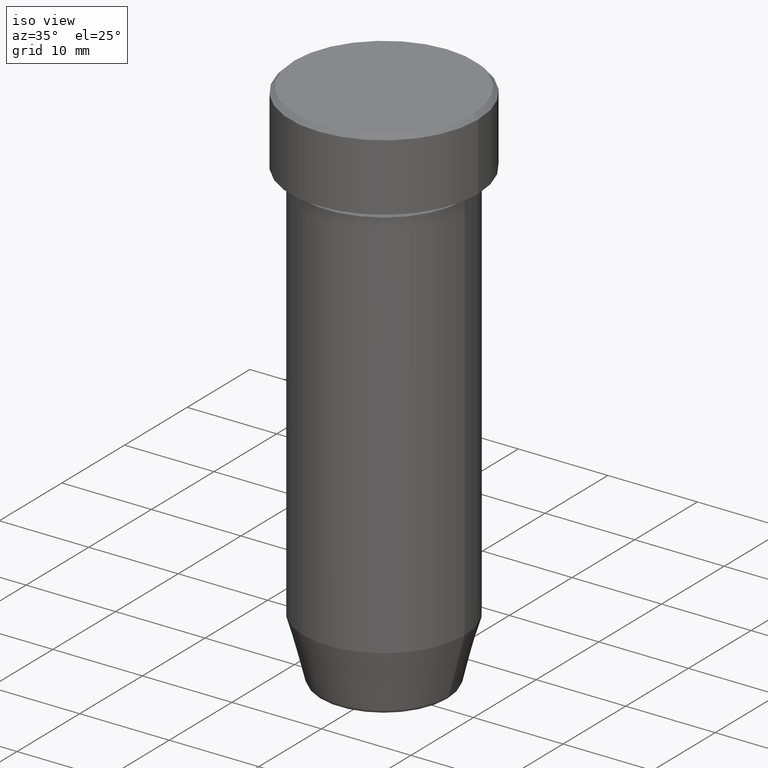
[diagram: clean part render]
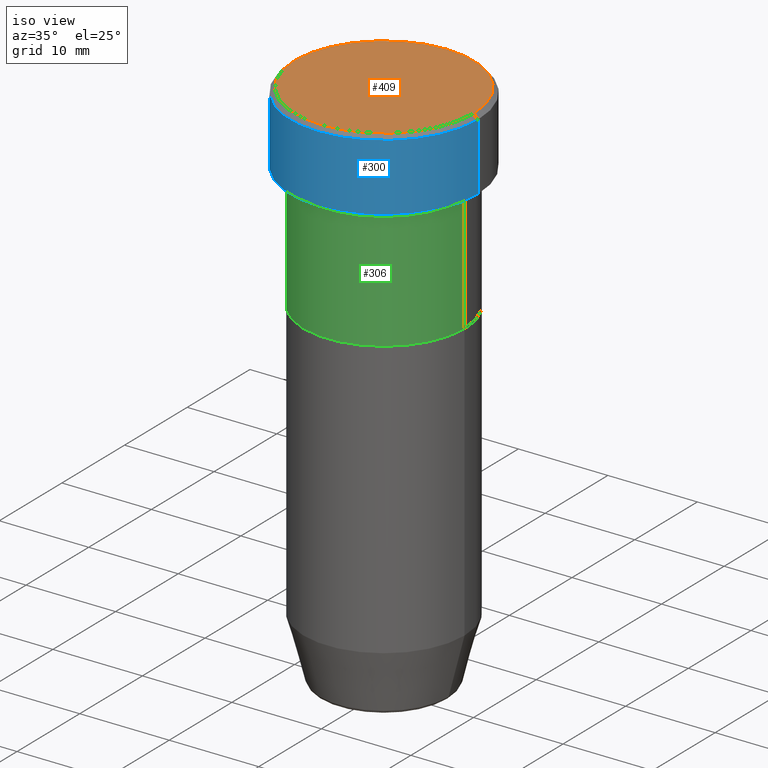
[diagram: same view with three faces highlighted in distinct colors, each labeled with its STEP entity id]
A machine part, iso view with three faces highlighted in distinct colors.
Their STEP definitions:

[orange] entity #409 — the highlighted planar face has unit normal (0, -0, 1).
#39 = DIRECTION ( 'NONE',  ( 0.000000000000000000, -0.000000000000000000, 1.000000000000000000 ) ) ;
#73 = PLANE ( 'NONE',  #519 ) ;
#89 = FACE_OUTER_BOUND ( 'NONE', #521, .T. ) ;
#135 = DIRECTION ( 'NONE',  ( -0.000000000000000000, -0.000000000000000000, 1.000000000000000000 ) ) ;
#141 = DIRECTION ( 'NONE',  ( -0.000000000000000000, -0.000000000000000000, 1.000000000000000000 ) ) ;
#145 = CARTESIAN_POINT ( 'NONE',  ( 0.000000000000000000, 0.000000000000000000, 0.000000000000000000 ) ) ;
#149 = AXIS2_PLACEMENT_3D ( 'NONE', #145, #141, #229 ) ;
#154 = ORIENTED_EDGE ( 'NONE', *, *, #185, .T. ) ;
#185 = EDGE_CURVE ( 'NONE', #275, #220, #296, .T. ) ;
#220 = VERTEX_POINT ( 'NONE', #599 ) ;
#229 = DIRECTION ( 'NONE',  ( 1.000000000000000000, 0.000000000000000000, 0.000000000000000000 ) ) ;
#265 = CARTESIAN_POINT ( 'NONE',  ( 0.000000000000000000, 0.000000000000000000, 0.000000000000000000 ) ) ;
#275 = VERTEX_POINT ( 'NONE', #472 ) ;
#296 = CIRCLE ( 'NONE', #528, 10.00000000000000178 ) ;
#325 = DIRECTION ( 'NONE',  ( 1.000000000000000000, 0.000000000000000000, 0.000000000000000000 ) ) ;
#334 = CIRCLE ( 'NONE', #149, 10.00000000000000178 ) ;
#360 = CARTESIAN_POINT ( 'NONE',  ( 0.000000000000000000, 0.000000000000000000, 0.000000000000000000 ) ) ;
#380 = ORIENTED_EDGE ( 'NONE', *, *, #494, .T. ) ;
#409 = ADVANCED_FACE ( 'NONE', ( #89 ), #73, .T. ) ;
#452 = DIRECTION ( 'NONE',  ( 1.000000000000000000, 0.000000000000000000, 0.000000000000000000 ) ) ;
#472 = CARTESIAN_POINT ( 'NONE',  ( 10.00000000000000178, 1.255262969126037241E-15, 0.000000000000000000 ) ) ;
#494 = EDGE_CURVE ( 'NONE', #220, #275, #334, .T. ) ;
#519 = AXIS2_PLACEMENT_3D ( 'NONE', #265, #39, #452 ) ;
#521 = EDGE_LOOP ( 'NONE', ( #380, #154 ) ) ;
#528 = AXIS2_PLACEMENT_3D ( 'NONE', #360, #135, #325 ) ;
#599 = CARTESIAN_POINT ( 'NONE',  ( -10.00000000000000178, 0.000000000000000000, 0.000000000000000000 ) ) ;

[blue] entity #300 — the highlighted cylindrical surface (partial cylindrical patch) has radius 10.5 mm, axis along (-0, -0, 1).
#11 = CARTESIAN_POINT ( 'NONE',  ( -10.50000000000000000, 1.285879139104720831E-15, -0.5000000000000023315 ) ) ;
#15 = CARTESIAN_POINT ( 'NONE',  ( -10.50000000000000000, 1.285879139104720831E-15, -8.000000000000000000 ) ) ;
#41 = ORIENTED_EDGE ( 'NONE', *, *, #153, .T. ) ;
#50 = CARTESIAN_POINT ( 'NONE',  ( 0.000000000000000000, 0.000000000000000000, -0.5000000000000023315 ) ) ;
#52 = DIRECTION ( 'NONE',  ( 1.000000000000000000, 0.000000000000000000, 0.000000000000000000 ) ) ;
#61 = EDGE_LOOP ( 'NONE', ( #424, #540, #41, #216 ) ) ;
#83 = DIRECTION ( 'NONE',  ( 1.000000000000000000, 0.000000000000000000, 0.000000000000000000 ) ) ;
#122 = CARTESIAN_POINT ( 'NONE',  ( -10.50000000000000000, 1.285879139104720831E-15, 0.000000000000000000 ) ) ;
#126 = DIRECTION ( 'NONE',  ( -0.000000000000000000, -0.000000000000000000, 1.000000000000000000 ) ) ;
#130 = CARTESIAN_POINT ( 'NONE',  ( 10.50000000000000000, 0.000000000000000000, -8.000000000000000000 ) ) ;
#132 = EDGE_CURVE ( 'NONE', #382, #242, #593, .T. ) ;
#133 = CARTESIAN_POINT ( 'NONE',  ( 0.000000000000000000, 0.000000000000000000, -8.000000000000000000 ) ) ;
#138 = VECTOR ( 'NONE', #126, 1000.000000000000000 ) ;
#143 = VERTEX_POINT ( 'NONE', #316 ) ;
#153 = EDGE_CURVE ( 'NONE', #242, #143, #410, .T. ) ;
#167 = CARTESIAN_POINT ( 'NONE',  ( 0.000000000000000000, 0.000000000000000000, 0.000000000000000000 ) ) ;
#179 = DIRECTION ( 'NONE',  ( -0.000000000000000000, -0.000000000000000000, 1.000000000000000000 ) ) ;
#206 = DIRECTION ( 'NONE',  ( 0.000000000000000000, 0.000000000000000000, -1.000000000000000000 ) ) ;
#216 = ORIENTED_EDGE ( 'NONE', *, *, #588, .T. ) ;
#242 = VERTEX_POINT ( 'NONE', #130 ) ;
#251 = CYLINDRICAL_SURFACE ( 'NONE', #331, 10.50000000000000000 ) ;
#300 = ADVANCED_FACE ( 'NONE', ( #586 ), #251, .T. ) ;
#316 = CARTESIAN_POINT ( 'NONE',  ( 10.50000000000000000, 0.000000000000000000, -0.5000000000000023315 ) ) ;
#317 = AXIS2_PLACEMENT_3D ( 'NONE', #50, #206, #52 ) ;
#331 = AXIS2_PLACEMENT_3D ( 'NONE', #167, #533, #485 ) ;
#356 = LINE ( 'NONE', #122, #138 ) ;
#367 = DIRECTION ( 'NONE',  ( -0.000000000000000000, -0.000000000000000000, 1.000000000000000000 ) ) ;
#371 = CIRCLE ( 'NONE', #317, 10.50000000000000000 ) ;
#382 = VERTEX_POINT ( 'NONE', #15 ) ;
#384 = EDGE_CURVE ( 'NONE', #382, #466, #356, .T. ) ;
#410 = LINE ( 'NONE', #505, #557 ) ;
#424 = ORIENTED_EDGE ( 'NONE', *, *, #384, .F. ) ;
#437 = AXIS2_PLACEMENT_3D ( 'NONE', #133, #179, #83 ) ;
#466 = VERTEX_POINT ( 'NONE', #11 ) ;
#485 = DIRECTION ( 'NONE',  ( 1.000000000000000000, 0.000000000000000000, 0.000000000000000000 ) ) ;
#505 = CARTESIAN_POINT ( 'NONE',  ( 10.50000000000000000, 0.000000000000000000, 0.000000000000000000 ) ) ;
#533 = DIRECTION ( 'NONE',  ( -0.000000000000000000, -0.000000000000000000, 1.000000000000000000 ) ) ;
#540 = ORIENTED_EDGE ( 'NONE', *, *, #132, .T. ) ;
#557 = VECTOR ( 'NONE', #367, 1000.000000000000000 ) ;
#586 = FACE_OUTER_BOUND ( 'NONE', #61, .T. ) ;
#588 = EDGE_CURVE ( 'NONE', #143, #466, #371, .T. ) ;
#593 = CIRCLE ( 'NONE', #437, 10.50000000000000000 ) ;

[green] entity #306 — the highlighted cylindrical surface (partial cylindrical patch) has radius 9 mm, axis along (-0, -0, 1).
#16 = VERTEX_POINT ( 'NONE', #124 ) ;
#25 = ORIENTED_EDGE ( 'NONE', *, *, #219, .T. ) ;
#34 = DIRECTION ( 'NONE',  ( -0.000000000000000000, -0.000000000000000000, 1.000000000000000000 ) ) ;
#42 = LINE ( 'NONE', #129, #481 ) ;
#49 = EDGE_CURVE ( 'NONE', #16, #506, #66, .T. ) ;
#65 = CIRCLE ( 'NONE', #450, 9.000000000000000000 ) ;
#66 = CIRCLE ( 'NONE', #202, 9.000000000000000000 ) ;
#67 = CARTESIAN_POINT ( 'NONE',  ( 0.000000000000000000, 0.000000000000000000, 0.000000000000000000 ) ) ;
#78 = CARTESIAN_POINT ( 'NONE',  ( 0.000000000000000000, 0.000000000000000000, -22.00000000000000000 ) ) ;
#94 = EDGE_LOOP ( 'NONE', ( #109, #25, #245, #421 ) ) ;
#109 = ORIENTED_EDGE ( 'NONE', *, *, #319, .F. ) ;
#110 = DIRECTION ( 'NONE',  ( -0.000000000000000000, -0.000000000000000000, 1.000000000000000000 ) ) ;
#112 = DIRECTION ( 'NONE',  ( -0.000000000000000000, -0.000000000000000000, 1.000000000000000000 ) ) ;
#124 = CARTESIAN_POINT ( 'NONE',  ( -9.000000000000000000, 1.102182119232617714E-15, -9.000000000000001776 ) ) ;
#129 = CARTESIAN_POINT ( 'NONE',  ( 9.000000000000000000, 0.000000000000000000, 0.000000000000000000 ) ) ;
#159 = CYLINDRICAL_SURFACE ( 'NONE', #541, 9.000000000000000000 ) ;
#202 = AXIS2_PLACEMENT_3D ( 'NONE', #576, #112, #303 ) ;
#219 = EDGE_CURVE ( 'NONE', #432, #339, #65, .T. ) ;
#245 = ORIENTED_EDGE ( 'NONE', *, *, #392, .T. ) ;
#255 = DIRECTION ( 'NONE',  ( 1.000000000000000000, 0.000000000000000000, 0.000000000000000000 ) ) ;
#302 = FACE_OUTER_BOUND ( 'NONE', #94, .T. ) ;
#303 = DIRECTION ( 'NONE',  ( 1.000000000000000000, 0.000000000000000000, 0.000000000000000000 ) ) ;
#306 = ADVANCED_FACE ( 'NONE', ( #302 ), #159, .T. ) ;
#314 = DIRECTION ( 'NONE',  ( -0.000000000000000000, -0.000000000000000000, 1.000000000000000000 ) ) ;
#319 = EDGE_CURVE ( 'NONE', #432, #16, #435, .T. ) ;
#339 = VERTEX_POINT ( 'NONE', #536 ) ;
#341 = CARTESIAN_POINT ( 'NONE',  ( -9.000000000000000000, 1.102182119232617714E-15, 0.000000000000000000 ) ) ;
#358 = CARTESIAN_POINT ( 'NONE',  ( 9.000000000000000000, 0.000000000000000000, -9.000000000000001776 ) ) ;
#392 = EDGE_CURVE ( 'NONE', #339, #506, #42, .T. ) ;
#406 = DIRECTION ( 'NONE',  ( 1.000000000000000000, 0.000000000000000000, 0.000000000000000000 ) ) ;
#421 = ORIENTED_EDGE ( 'NONE', *, *, #49, .F. ) ;
#432 = VERTEX_POINT ( 'NONE', #455 ) ;
#435 = LINE ( 'NONE', #341, #469 ) ;
#439 = DIRECTION ( 'NONE',  ( -0.000000000000000000, -0.000000000000000000, 1.000000000000000000 ) ) ;
#450 = AXIS2_PLACEMENT_3D ( 'NONE', #78, #34, #406 ) ;
#455 = CARTESIAN_POINT ( 'NONE',  ( -9.000000000000000000, 1.102182119232617714E-15, -22.00000000000000000 ) ) ;
#469 = VECTOR ( 'NONE', #439, 1000.000000000000000 ) ;
#481 = VECTOR ( 'NONE', #314, 1000.000000000000000 ) ;
#506 = VERTEX_POINT ( 'NONE', #358 ) ;
#536 = CARTESIAN_POINT ( 'NONE',  ( 9.000000000000000000, 0.000000000000000000, -22.00000000000000000 ) ) ;
#541 = AXIS2_PLACEMENT_3D ( 'NONE', #67, #110, #255 ) ;
#576 = CARTESIAN_POINT ( 'NONE',  ( 0.000000000000000000, 0.000000000000000000, -9.000000000000001776 ) ) ;